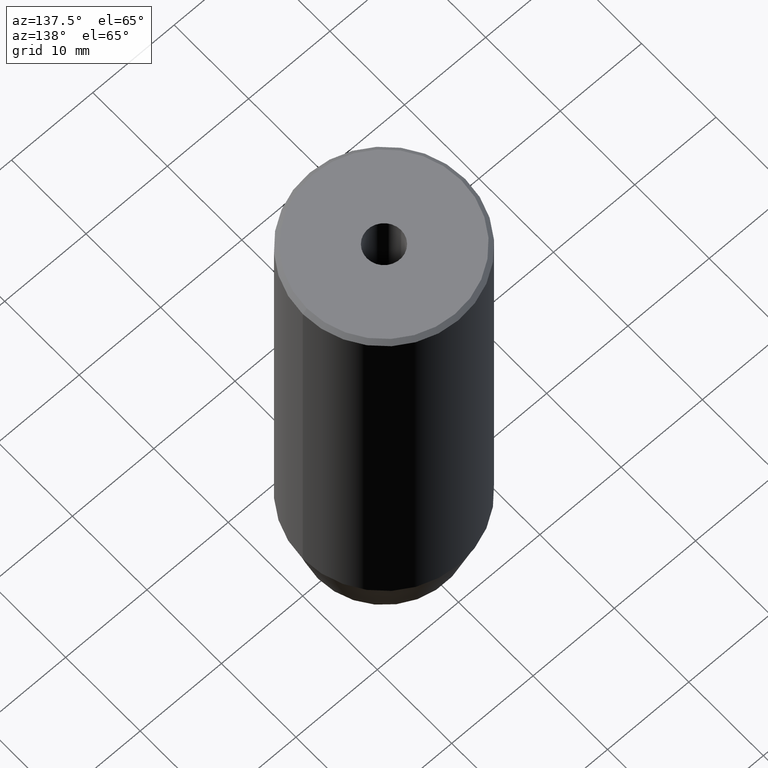
[diagram: clean part render]
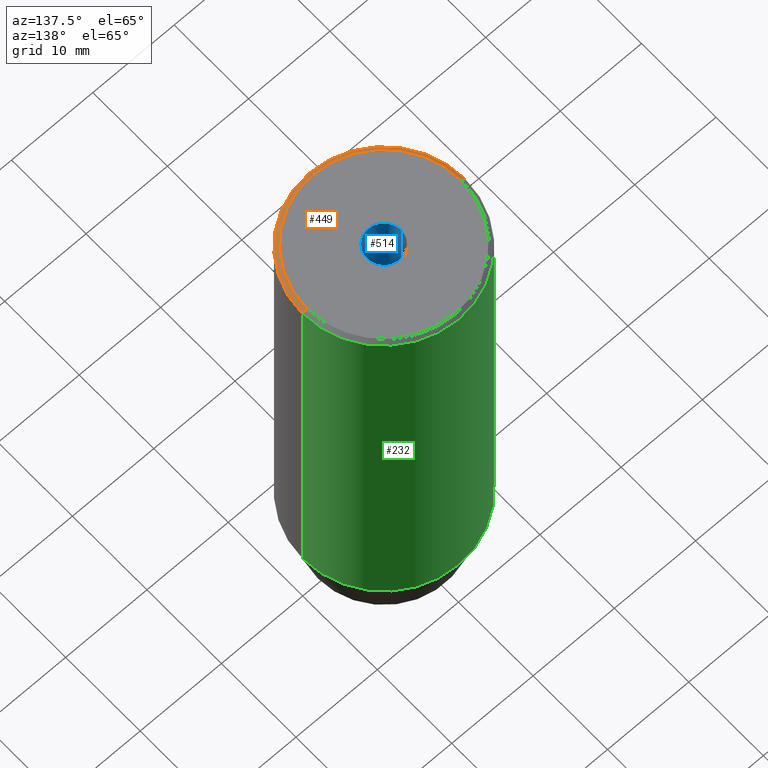
[diagram: same view with three faces highlighted in distinct colors, each labeled with its STEP entity id]
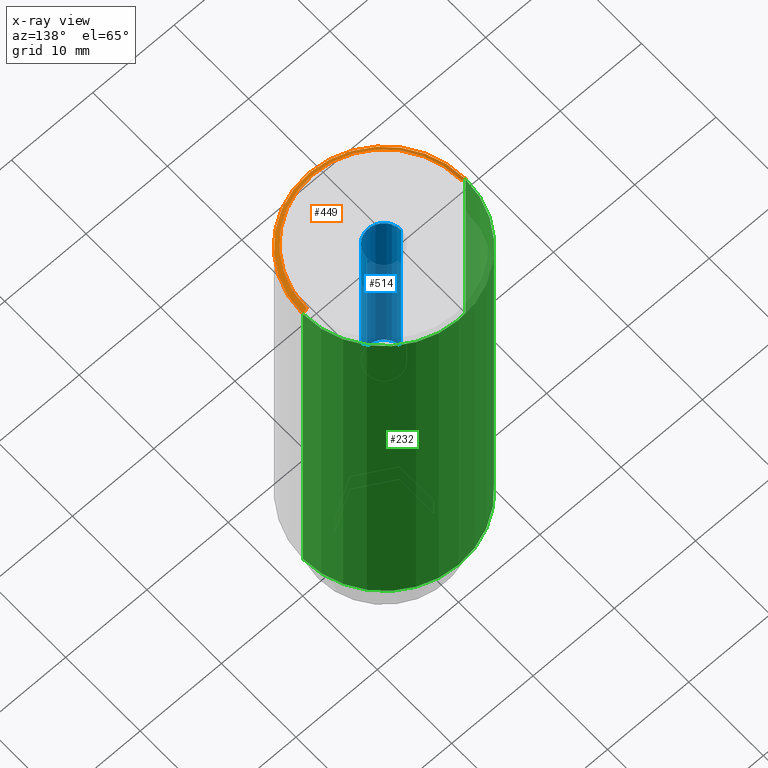
[diagram: x-ray of the same camera — body ghosted, the three highlighted faces saturated]
A machine part, auxiliary view with three faces highlighted in distinct colors.
The next image is the same camera in x-ray (body ghosted, the three faces saturated) — at least one of them is partly hidden behind the body in this view.
Their STEP definitions:

[orange] entity #449 — the highlighted conical surface has half-angle 45 deg.
#19 = DIRECTION ( 'NONE',  ( 1.000000000000000000, 0.000000000000000000, 0.000000000000000000 ) ) ;
#27 = CARTESIAN_POINT ( 'NONE',  ( 0.000000000000000000, 0.000000000000000000, -0.5000000000000056621 ) ) ;
#31 = CONICAL_SURFACE ( 'NONE', #328, 9.500000000000001776, 0.7853981633974415066 ) ;
#53 = CARTESIAN_POINT ( 'NONE',  ( 0.000000000000000000, 0.000000000000000000, 0.000000000000000000 ) ) ;
#57 = CARTESIAN_POINT ( 'NONE',  ( -9.500000000000001776, 0.000000000000000000, 0.000000000000000000 ) ) ;
#68 = EDGE_CURVE ( 'NONE', #174, #451, #574, .T. ) ;
#79 = AXIS2_PLACEMENT_3D ( 'NONE', #53, #496, #452 ) ;
#100 = VECTOR ( 'NONE', #142, 1000.000000000000000 ) ;
#134 = VERTEX_POINT ( 'NONE', #314 ) ;
#140 = DIRECTION ( 'NONE',  ( -1.000000000000000000, 0.000000000000000000, 0.000000000000000000 ) ) ;
#142 = DIRECTION ( 'NONE',  ( -0.7071067811865426878, 0.000000000000000000, -0.7071067811865524577 ) ) ;
#173 = CARTESIAN_POINT ( 'NONE',  ( 0.000000000000000000, 0.000000000000000000, 0.000000000000000000 ) ) ;
#174 = VERTEX_POINT ( 'NONE', #57 ) ;
#183 = DIRECTION ( 'NONE',  ( 0.7071067811865426878, 8.659560562354873694E-17, -0.7071067811865524577 ) ) ;
#202 = CARTESIAN_POINT ( 'NONE',  ( -10.00000000000000000, 1.224646799147353256E-15, -0.5000000000000056621 ) ) ;
#207 = ORIENTED_EDGE ( 'NONE', *, *, #276, .F. ) ;
#210 = DIRECTION ( 'NONE',  ( 0.000000000000000000, 0.000000000000000000, -1.000000000000000000 ) ) ;
#225 = LINE ( 'NONE', #397, #438 ) ;
#230 = DIRECTION ( 'NONE',  ( 0.000000000000000000, 0.000000000000000000, -1.000000000000000000 ) ) ;
#276 = EDGE_CURVE ( 'NONE', #134, #518, #354, .T. ) ;
#306 = EDGE_LOOP ( 'NONE', ( #453, #334, #343, #207 ) ) ;
#314 = CARTESIAN_POINT ( 'NONE',  ( 10.00000000000000000, 0.000000000000000000, -0.5000000000000056621 ) ) ;
#328 = AXIS2_PLACEMENT_3D ( 'NONE', #173, #230, #140 ) ;
#334 = ORIENTED_EDGE ( 'NONE', *, *, #68, .F. ) ;
#343 = ORIENTED_EDGE ( 'NONE', *, *, #587, .T. ) ;
#354 = CIRCLE ( 'NONE', #448, 10.00000000000000000 ) ;
#379 = EDGE_CURVE ( 'NONE', #451, #134, #225, .T. ) ;
#397 = CARTESIAN_POINT ( 'NONE',  ( 9.500000000000001776, 1.163414459189985682E-15, 0.000000000000000000 ) ) ;
#401 = LINE ( 'NONE', #541, #100 ) ;
#438 = VECTOR ( 'NONE', #183, 1000.000000000000000 ) ;
#448 = AXIS2_PLACEMENT_3D ( 'NONE', #27, #210, #19 ) ;
#449 = ADVANCED_FACE ( 'NONE', ( #579 ), #31, .T. ) ;
#451 = VERTEX_POINT ( 'NONE', #490 ) ;
#452 = DIRECTION ( 'NONE',  ( 1.000000000000000000, 0.000000000000000000, 0.000000000000000000 ) ) ;
#453 = ORIENTED_EDGE ( 'NONE', *, *, #379, .F. ) ;
#490 = CARTESIAN_POINT ( 'NONE',  ( 9.500000000000001776, 1.194030629168669469E-15, 0.000000000000000000 ) ) ;
#496 = DIRECTION ( 'NONE',  ( -0.000000000000000000, -0.000000000000000000, 1.000000000000000000 ) ) ;
#518 = VERTEX_POINT ( 'NONE', #202 ) ;
#541 = CARTESIAN_POINT ( 'NONE',  ( -9.500000000000001776, 0.000000000000000000, 0.000000000000000000 ) ) ;
#574 = CIRCLE ( 'NONE', #79, 9.500000000000001776 ) ;
#579 = FACE_OUTER_BOUND ( 'NONE', #306, .T. ) ;
#587 = EDGE_CURVE ( 'NONE', #174, #518, #401, .T. ) ;

[blue] entity #514 — the highlighted cylindrical surface (edge-blend (fillet) strip) has radius 2.1 mm, axis along (-0, -0, 1).
#8 = CARTESIAN_POINT ( 'NONE',  ( 0.000000000000000000, 0.000000000000000000, -1.990051048614449116E-16 ) ) ;
#22 = CARTESIAN_POINT ( 'NONE',  ( 2.099999999999998757, 0.000000000000000000, -1.990051048614449116E-16 ) ) ;
#52 = VERTEX_POINT ( 'NONE', #194 ) ;
#69 = VERTEX_POINT ( 'NONE', #22 ) ;
#152 = ORIENTED_EDGE ( 'NONE', *, *, #466, .F. ) ;
#158 = DIRECTION ( 'NONE',  ( -0.000000000000000000, -0.000000000000000000, 1.000000000000000000 ) ) ;
#159 = LINE ( 'NONE', #285, #321 ) ;
#194 = CARTESIAN_POINT ( 'NONE',  ( -2.099999999999995648, 2.571758278209436040E-16, -25.00000000000000000 ) ) ;
#198 = CARTESIAN_POINT ( 'NONE',  ( 0.000000000000000000, 0.000000000000000000, 0.000000000000000000 ) ) ;
#200 = CARTESIAN_POINT ( 'NONE',  ( -2.099999999999998757, 2.571758278209440478E-16, -1.990051048614449116E-16 ) ) ;
#203 = DIRECTION ( 'NONE',  ( -0.000000000000000000, -0.000000000000000000, 1.000000000000000000 ) ) ;
#205 = VERTEX_POINT ( 'NONE', #422 ) ;
#216 = AXIS2_PLACEMENT_3D ( 'NONE', #375, #158, #565 ) ;
#242 = EDGE_CURVE ( 'NONE', #52, #205, #251, .T. ) ;
#245 = ORIENTED_EDGE ( 'NONE', *, *, #349, .T. ) ;
#251 = CIRCLE ( 'NONE', #216, 2.099999999999995648 ) ;
#269 = LINE ( 'NONE', #389, #396 ) ;
#285 = CARTESIAN_POINT ( 'NONE',  ( 2.099999999999996980, 0.000000000000000000, 0.000000000000000000 ) ) ;
#287 = CIRCLE ( 'NONE', #575, 2.099999999999998757 ) ;
#296 = VERTEX_POINT ( 'NONE', #200 ) ;
#302 = AXIS2_PLACEMENT_3D ( 'NONE', #198, #450, #558 ) ;
#321 = VECTOR ( 'NONE', #203, 1000.000000000000000 ) ;
#349 = EDGE_CURVE ( 'NONE', #296, #69, #287, .T. ) ;
#370 = FACE_OUTER_BOUND ( 'NONE', #531, .T. ) ;
#375 = CARTESIAN_POINT ( 'NONE',  ( 0.000000000000000000, 0.000000000000000000, -25.00000000000000000 ) ) ;
#389 = CARTESIAN_POINT ( 'NONE',  ( -2.099999999999996980, 2.571758278209438013E-16, 0.000000000000000000 ) ) ;
#396 = VECTOR ( 'NONE', #530, 1000.000000000000000 ) ;
#402 = ORIENTED_EDGE ( 'NONE', *, *, #405, .T. ) ;
#405 = EDGE_CURVE ( 'NONE', #52, #296, #269, .T. ) ;
#422 = CARTESIAN_POINT ( 'NONE',  ( 2.099999999999995648, 0.000000000000000000, -25.00000000000000000 ) ) ;
#434 = DIRECTION ( 'NONE',  ( -0.000000000000000000, -0.000000000000000000, 1.000000000000000000 ) ) ;
#442 = DIRECTION ( 'NONE',  ( 1.000000000000000000, 0.000000000000000000, 0.000000000000000000 ) ) ;
#450 = DIRECTION ( 'NONE',  ( -0.000000000000000000, -0.000000000000000000, 1.000000000000000000 ) ) ;
#466 = EDGE_CURVE ( 'NONE', #205, #69, #159, .T. ) ;
#506 = ORIENTED_EDGE ( 'NONE', *, *, #242, .F. ) ;
#514 = ADVANCED_FACE ( 'NONE', ( #370 ), #550, .F. ) ;
#530 = DIRECTION ( 'NONE',  ( -0.000000000000000000, -0.000000000000000000, 1.000000000000000000 ) ) ;
#531 = EDGE_LOOP ( 'NONE', ( #506, #402, #245, #152 ) ) ;
#550 = CYLINDRICAL_SURFACE ( 'NONE', #302, 2.099999999999996980 ) ;
#558 = DIRECTION ( 'NONE',  ( 1.000000000000000000, 0.000000000000000000, 0.000000000000000000 ) ) ;
#565 = DIRECTION ( 'NONE',  ( 1.000000000000000000, 0.000000000000000000, 0.000000000000000000 ) ) ;
#575 = AXIS2_PLACEMENT_3D ( 'NONE', #8, #434, #442 ) ;

[green] entity #232 — the highlighted cylindrical surface (partial cylindrical patch) has radius 10 mm, axis along (-0, -0, 1).
#7 = CARTESIAN_POINT ( 'NONE',  ( 0.000000000000000000, 0.000000000000000000, -0.5000000000000056621 ) ) ;
#35 = CARTESIAN_POINT ( 'NONE',  ( -10.00000000000000000, 1.224646799147353256E-15, -53.00000000000000000 ) ) ;
#40 = CARTESIAN_POINT ( 'NONE',  ( 0.000000000000000000, 0.000000000000000000, -53.00000000000000000 ) ) ;
#44 = VECTOR ( 'NONE', #495, 1000.000000000000000 ) ;
#62 = ORIENTED_EDGE ( 'NONE', *, *, #167, .F. ) ;
#64 = DIRECTION ( 'NONE',  ( -0.000000000000000000, -0.000000000000000000, 1.000000000000000000 ) ) ;
#93 = DIRECTION ( 'NONE',  ( 1.000000000000000000, 0.000000000000000000, 0.000000000000000000 ) ) ;
#108 = VECTOR ( 'NONE', #362, 1000.000000000000000 ) ;
#132 = EDGE_CURVE ( 'NONE', #193, #393, #395, .T. ) ;
#134 = VERTEX_POINT ( 'NONE', #314 ) ;
#148 = CYLINDRICAL_SURFACE ( 'NONE', #267, 10.00000000000000000 ) ;
#149 = ORIENTED_EDGE ( 'NONE', *, *, #162, .T. ) ;
#150 = ORIENTED_EDGE ( 'NONE', *, *, #339, .T. ) ;
#162 = EDGE_CURVE ( 'NONE', #518, #134, #464, .T. ) ;
#167 = EDGE_CURVE ( 'NONE', #193, #134, #274, .T. ) ;
#193 = VERTEX_POINT ( 'NONE', #552 ) ;
#202 = CARTESIAN_POINT ( 'NONE',  ( -10.00000000000000000, 1.224646799147353256E-15, -0.5000000000000056621 ) ) ;
#224 = ORIENTED_EDGE ( 'NONE', *, *, #132, .T. ) ;
#227 = AXIS2_PLACEMENT_3D ( 'NONE', #7, #543, #361 ) ;
#232 = ADVANCED_FACE ( 'NONE', ( #546 ), #148, .T. ) ;
#233 = DIRECTION ( 'NONE',  ( -0.000000000000000000, -0.000000000000000000, 1.000000000000000000 ) ) ;
#266 = AXIS2_PLACEMENT_3D ( 'NONE', #40, #233, #93 ) ;
#267 = AXIS2_PLACEMENT_3D ( 'NONE', #368, #64, #572 ) ;
#274 = LINE ( 'NONE', #491, #44 ) ;
#275 = LINE ( 'NONE', #584, #108 ) ;
#314 = CARTESIAN_POINT ( 'NONE',  ( 10.00000000000000000, 0.000000000000000000, -0.5000000000000056621 ) ) ;
#339 = EDGE_CURVE ( 'NONE', #393, #518, #275, .T. ) ;
#361 = DIRECTION ( 'NONE',  ( 1.000000000000000000, 0.000000000000000000, 0.000000000000000000 ) ) ;
#362 = DIRECTION ( 'NONE',  ( -0.000000000000000000, -0.000000000000000000, 1.000000000000000000 ) ) ;
#368 = CARTESIAN_POINT ( 'NONE',  ( 0.000000000000000000, 0.000000000000000000, 0.000000000000000000 ) ) ;
#393 = VERTEX_POINT ( 'NONE', #35 ) ;
#395 = CIRCLE ( 'NONE', #266, 10.00000000000000000 ) ;
#464 = CIRCLE ( 'NONE', #227, 10.00000000000000000 ) ;
#491 = CARTESIAN_POINT ( 'NONE',  ( 10.00000000000000000, 0.000000000000000000, 0.000000000000000000 ) ) ;
#495 = DIRECTION ( 'NONE',  ( -0.000000000000000000, -0.000000000000000000, 1.000000000000000000 ) ) ;
#518 = VERTEX_POINT ( 'NONE', #202 ) ;
#543 = DIRECTION ( 'NONE',  ( 0.000000000000000000, 0.000000000000000000, -1.000000000000000000 ) ) ;
#546 = FACE_OUTER_BOUND ( 'NONE', #557, .T. ) ;
#552 = CARTESIAN_POINT ( 'NONE',  ( 10.00000000000000000, 0.000000000000000000, -53.00000000000000000 ) ) ;
#557 = EDGE_LOOP ( 'NONE', ( #224, #150, #149, #62 ) ) ;
#572 = DIRECTION ( 'NONE',  ( 1.000000000000000000, 0.000000000000000000, 0.000000000000000000 ) ) ;
#584 = CARTESIAN_POINT ( 'NONE',  ( -10.00000000000000000, 1.224646799147353256E-15, 0.000000000000000000 ) ) ;